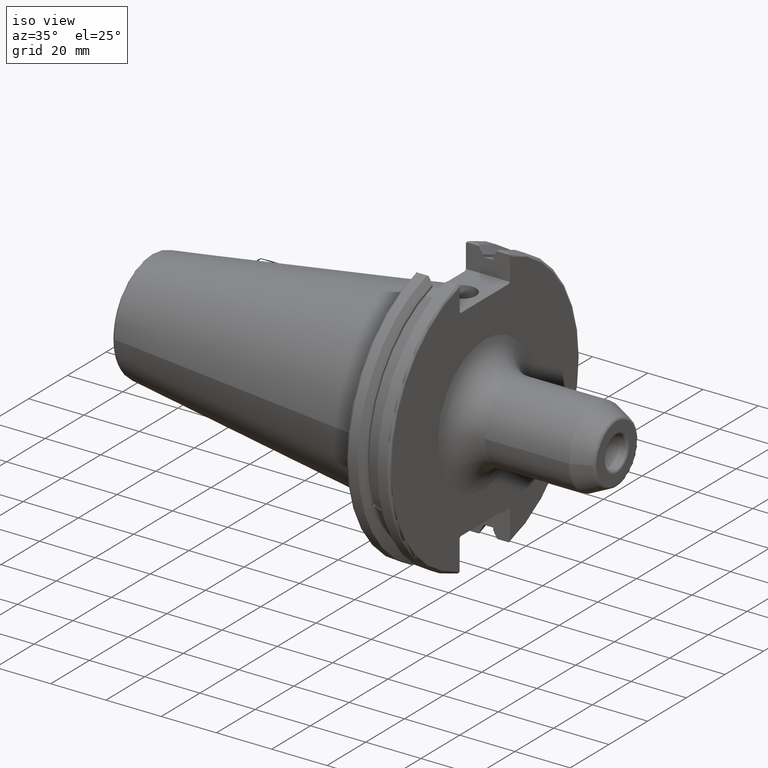
[diagram: clean part render]
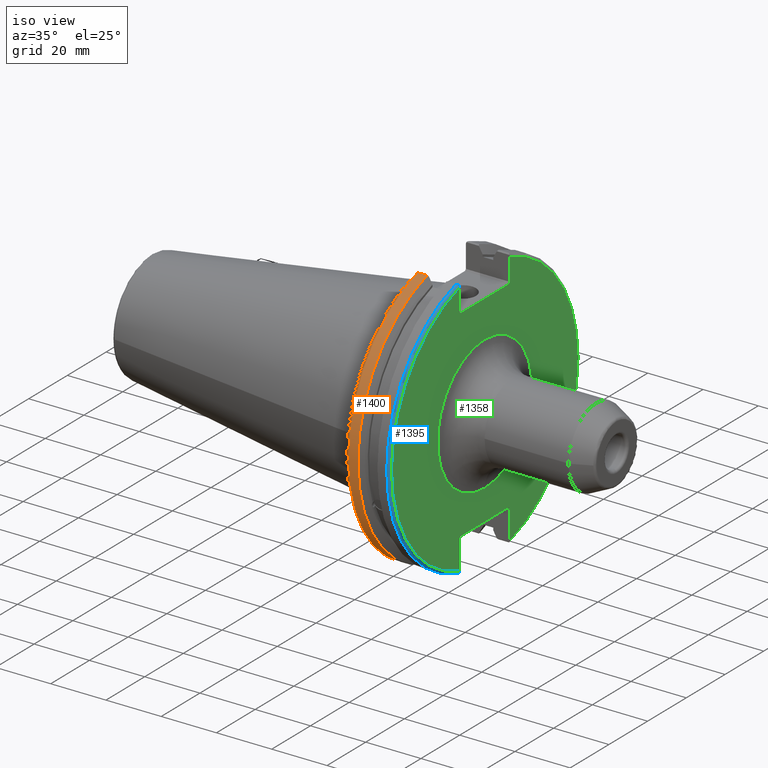
[diagram: same view with three faces highlighted in distinct colors, each labeled with its STEP entity id]
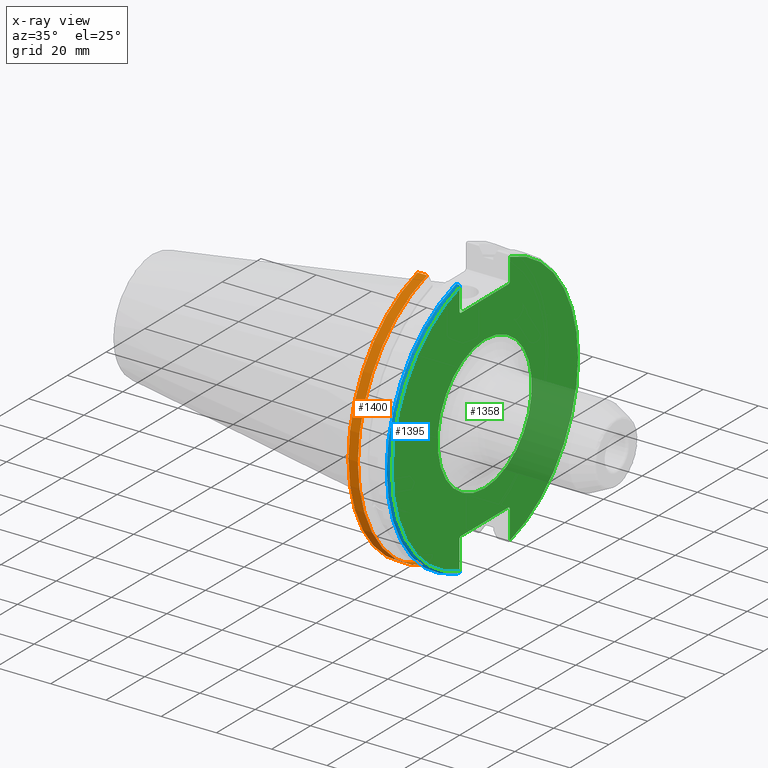
[diagram: x-ray of the same camera — body ghosted, the three highlighted faces saturated]
A machine part, iso view with three faces highlighted in distinct colors.
The next image is the same camera in x-ray (body ghosted, the three faces saturated) — at least one of them is partly hidden behind the body in this view.
Their STEP definitions:

[orange] entity #1400 — the highlighted cylindrical surface (partial cylindrical patch) has radius 49.2125 mm, axis along (1, 0, 0).
#104=CYLINDRICAL_SURFACE('',#1562,49.2125);
#158=FACE_OUTER_BOUND('',#248,.T.);
#248=EDGE_LOOP('',(#1183,#1184,#1185,#1186));
#341=CIRCLE('',#1560,49.2125);
#342=CIRCLE('',#1563,49.2125);
#426=LINE('',#2638,#514);
#427=LINE('',#2644,#515);
#514=VECTOR('',#1891,10.);
#515=VECTOR('',#1894,10.);
#685=VERTEX_POINT('',#2617);
#686=VERTEX_POINT('',#2626);
#687=VERTEX_POINT('',#2637);
#688=VERTEX_POINT('',#2643);
#867=EDGE_CURVE('',#685,#686,#341,.T.);
#869=EDGE_CURVE('',#686,#687,#426,.T.);
#871=EDGE_CURVE('',#688,#685,#427,.T.);
#872=EDGE_CURVE('',#687,#688,#342,.T.);
#1183=ORIENTED_EDGE('',*,*,#867,.F.);
#1184=ORIENTED_EDGE('',*,*,#871,.F.);
#1185=ORIENTED_EDGE('',*,*,#872,.F.);
#1186=ORIENTED_EDGE('',*,*,#869,.F.);
#1400=ADVANCED_FACE('',(#158),#104,.T.);
#1560=AXIS2_PLACEMENT_3D('',#2627,#1887,#1888);
#1562=AXIS2_PLACEMENT_3D('',#2642,#1892,#1893);
#1563=AXIS2_PLACEMENT_3D('',#2645,#1895,#1896);
#1887=DIRECTION('center_axis',(-1.,0.,0.));
#1888=DIRECTION('ref_axis',(0.,-1.,1.60812264967664E-16));
#1891=DIRECTION('',(1.,0.,0.));
#1892=DIRECTION('center_axis',(1.,0.,0.));
#1893=DIRECTION('ref_axis',(0.,-1.,1.22464679914735E-16));
#1894=DIRECTION('',(-1.,0.,0.));
#1895=DIRECTION('center_axis',(1.,0.,0.));
#1896=DIRECTION('ref_axis',(0.,0.,-1.));
#2617=CARTESIAN_POINT('',(4.175,-13.4317035994433,-47.3440544806494));
#2626=CARTESIAN_POINT('',(4.175,-13.4317035994433,47.3440544806494));
#2627=CARTESIAN_POINT('Origin',(4.175,0.,0.));
#2637=CARTESIAN_POINT('',(7.60799096595127,-13.4317035994433,47.3440544806494));
#2638=CARTESIAN_POINT('',(5.39149548297563,-13.4317035994433,47.3440544806494));
#2642=CARTESIAN_POINT('Origin',(5.39149548297563,0.,0.));
#2643=CARTESIAN_POINT('',(7.60799096595127,-13.4317035994433,-47.3440544806494));
#2644=CARTESIAN_POINT('',(5.39149548297563,-13.4317035994433,-47.3440544806494));
#2645=CARTESIAN_POINT('Origin',(7.60799096595127,0.,0.));

[blue] entity #1395 — the highlighted toroidal blend (fillet) surface has major radius 48.2125 mm and minor (blend) radius 1 mm.
#86=TOROIDAL_SURFACE('',#1555,48.2125,1.);
#153=FACE_OUTER_BOUND('',#243,.T.);
#243=EDGE_LOOP('',(#1143,#1144,#1145,#1146,#1147,#1148));
#294=CIRCLE('',#1471,48.2125);
#340=CIRCLE('',#1556,49.2125);
#556=B_SPLINE_CURVE_WITH_KNOTS('',3,(#2548,#2549,#2550,#2551,#2552,#2553),
 .UNSPECIFIED.,.F.,.F.,(4,2,4),(0.097707143645253,0.112358403262293,0.150882178076498),
 .UNSPECIFIED.);
#557=B_SPLINE_CURVE_WITH_KNOTS('',3,(#2555,#2556,#2557,#2558,#2559,#2560),
 .UNSPECIFIED.,.F.,.F.,(4,2,4),(0.452859694247731,0.491383469061936,0.506034728678978),
 .UNSPECIFIED.);
#558=B_SPLINE_CURVE_WITH_KNOTS('',3,(#2562,#2563,#2564,#2565,#2566,#2567,
#2568,#2569),.UNSPECIFIED.,.F.,.F.,(4,2,2,4),(-0.104075769062722,-0.0730268503455477,
-0.0343639873656263,0.),.UNSPECIFIED.);
#559=B_SPLINE_CURVE_WITH_KNOTS('',3,(#2572,#2573,#2574,#2575,#2576,#2577,
#2578,#2579),.UNSPECIFIED.,.F.,.F.,(4,2,2,4),(0.,0.0364336453281818,0.0778720357014993,
0.104197480645881),.UNSPECIFIED.);
#583=VERTEX_POINT('',#2140);
#584=VERTEX_POINT('',#2142);
#674=VERTEX_POINT('',#2547);
#675=VERTEX_POINT('',#2554);
#676=VERTEX_POINT('',#2561);
#677=VERTEX_POINT('',#2570);
#727=EDGE_CURVE('',#584,#583,#294,.T.);
#848=EDGE_CURVE('',#674,#584,#556,.T.);
#849=EDGE_CURVE('',#583,#675,#557,.T.);
#850=EDGE_CURVE('',#675,#676,#558,.T.);
#851=EDGE_CURVE('',#676,#677,#340,.T.);
#852=EDGE_CURVE('',#677,#674,#559,.T.);
#1143=ORIENTED_EDGE('',*,*,#848,.T.);
#1144=ORIENTED_EDGE('',*,*,#727,.T.);
#1145=ORIENTED_EDGE('',*,*,#849,.T.);
#1146=ORIENTED_EDGE('',*,*,#850,.T.);
#1147=ORIENTED_EDGE('',*,*,#851,.T.);
#1148=ORIENTED_EDGE('',*,*,#852,.T.);
#1395=ADVANCED_FACE('',(#153),#86,.T.);
#1471=AXIS2_PLACEMENT_3D('',#2143,#1652,#1653);
#1555=AXIS2_PLACEMENT_3D('',#2546,#1868,#1869);
#1556=AXIS2_PLACEMENT_3D('',#2571,#1870,#1871);
#1652=DIRECTION('center_axis',(-1.,0.,0.));
#1653=DIRECTION('ref_axis',(0.,-1.,1.60812264967664E-16));
#1868=DIRECTION('center_axis',(1.,0.,0.));
#1869=DIRECTION('ref_axis',(0.,0.,-1.));
#1870=DIRECTION('center_axis',(1.,0.,0.));
#1871=DIRECTION('ref_axis',(0.,-1.,1.60812264967664E-16));
#2140=CARTESIAN_POINT('',(19.05,-12.95,46.4407434937254));
#2142=CARTESIAN_POINT('',(19.05,-12.95,-46.4407434937254));
#2143=CARTESIAN_POINT('Origin',(19.05,0.,0.));
#2546=CARTESIAN_POINT('Origin',(18.05,0.,0.));
#2547=CARTESIAN_POINT('',(18.9055020570566,-12.95,-46.9780755322917));
#2548=CARTESIAN_POINT('Ctrl Pts',(18.9055020570566,-12.95,-46.9780755322917));
#2549=CARTESIAN_POINT('Ctrl Pts',(18.9322353702005,-12.95,-46.9322596399785));
#2550=CARTESIAN_POINT('Ctrl Pts',(18.9549831813775,-12.95,-46.8849952622217));
#2551=CARTESIAN_POINT('Ctrl Pts',(19.0209992543299,-12.95,-46.7204975987179));
#2552=CARTESIAN_POINT('Ctrl Pts',(19.05,-12.95,-46.5691560764394));
#2553=CARTESIAN_POINT('Ctrl Pts',(19.05,-12.95,-46.4407434937254));
#2554=CARTESIAN_POINT('',(18.9055020570566,-12.95,46.9780755322918));
#2555=CARTESIAN_POINT('Ctrl Pts',(19.05,-12.95,46.4407434937254));
#2556=CARTESIAN_POINT('Ctrl Pts',(19.05,-12.95,46.5691560764394));
#2557=CARTESIAN_POINT('Ctrl Pts',(19.0209992543299,-12.95,46.7204975987179));
#2558=CARTESIAN_POINT('Ctrl Pts',(18.9549831813775,-12.95,46.8849952622217));
#2559=CARTESIAN_POINT('Ctrl Pts',(18.9322353702005,-12.95,46.9322596399785));
#2560=CARTESIAN_POINT('Ctrl Pts',(18.9055020570566,-12.95,46.9780755322918));
#2561=CARTESIAN_POINT('',(18.05,-13.4317035994433,47.3440544806494));
#2562=CARTESIAN_POINT('Ctrl Pts',(18.9055020570566,-12.95,46.9780755322918));
#2563=CARTESIAN_POINT('Ctrl Pts',(18.8571496772125,-13.0300321736484,47.0388807469102));
#2564=CARTESIAN_POINT('Ctrl Pts',(18.792640282015,-13.1083611826073,47.0983919657547));
#2565=CARTESIAN_POINT('Ctrl Pts',(18.6399248789208,-13.2478194810695,47.2043467509586));
#2566=CARTESIAN_POINT('Ctrl Pts',(18.5186188350904,-13.3242014686233,47.2623787015413));
#2567=CARTESIAN_POINT('Ctrl Pts',(18.2983889675417,-13.4067722493645,47.3251126473446));
#2568=CARTESIAN_POINT('Ctrl Pts',(18.1645466245521,-13.4317035994433,47.3440544806494));
#2569=CARTESIAN_POINT('Ctrl Pts',(18.05,-13.4317035994433,47.3440544806494));
#2570=CARTESIAN_POINT('',(18.05,-13.4317035994433,-47.3440544806494));
#2571=CARTESIAN_POINT('Origin',(18.05,0.,0.));
#2572=CARTESIAN_POINT('Ctrl Pts',(18.05,-13.4317035994433,-47.3440544806494));
#2573=CARTESIAN_POINT('Ctrl Pts',(18.1714454844273,-13.4317035994433,-47.3440544806494));
#2574=CARTESIAN_POINT('Ctrl Pts',(18.3128758164404,-13.4037095171132,-47.3227857070233));
#2575=CARTESIAN_POINT('Ctrl Pts',(18.54495745946,-13.3111366376071,-47.2524525703658));
#2576=CARTESIAN_POINT('Ctrl Pts',(18.6710431007969,-13.2254637570201,-47.1873617743322));
#2577=CARTESIAN_POINT('Ctrl Pts',(18.811782280389,-13.0847856162862,-47.0804802022157));
#2578=CARTESIAN_POINT('Ctrl Pts',(18.8641312352177,-13.0184763978125,-47.0301011349397));
#2579=CARTESIAN_POINT('Ctrl Pts',(18.9055020570566,-12.95,-46.9780755322917));

[green] entity #1358 — the highlighted planar face has unit normal (1, 0, 0).
#33=PLANE('',#1469);
#69=FACE_BOUND('',#199,.T.);
#116=FACE_OUTER_BOUND('',#198,.T.);
#198=EDGE_LOOP('',(#941,#942,#943,#944,#945,#946,#947,#948,#949,#950,#951,
#952));
#199=EDGE_LOOP('',(#953));
#289=CIRCLE('',#1464,24.35);
#293=CIRCLE('',#1470,48.2125);
#294=CIRCLE('',#1471,48.2125);
#364=LINE('',#2133,#452);
#365=LINE('',#2135,#453);
#366=LINE('',#2137,#454);
#367=LINE('',#2139,#455);
#368=LINE('',#2141,#456);
#369=LINE('',#2145,#457);
#370=LINE('',#2147,#458);
#371=LINE('',#2149,#459);
#372=LINE('',#2151,#460);
#373=LINE('',#2152,#461);
#452=VECTOR('',#1647,10.);
#453=VECTOR('',#1648,10.);
#454=VECTOR('',#1649,10.);
#455=VECTOR('',#1650,10.);
#456=VECTOR('',#1651,10.);
#457=VECTOR('',#1654,10.);
#458=VECTOR('',#1655,10.);
#459=VECTOR('',#1656,10.);
#460=VECTOR('',#1657,10.);
#461=VECTOR('',#1658,10.);
#574=VERTEX_POINT('',#2118);
#577=VERTEX_POINT('',#2129);
#578=VERTEX_POINT('',#2130);
#579=VERTEX_POINT('',#2132);
#580=VERTEX_POINT('',#2134);
#581=VERTEX_POINT('',#2136);
#582=VERTEX_POINT('',#2138);
#583=VERTEX_POINT('',#2140);
#584=VERTEX_POINT('',#2142);
#585=VERTEX_POINT('',#2144);
#586=VERTEX_POINT('',#2146);
#587=VERTEX_POINT('',#2148);
#588=VERTEX_POINT('',#2150);
#716=EDGE_CURVE('',#574,#574,#289,.T.);
#721=EDGE_CURVE('',#577,#578,#293,.T.);
#722=EDGE_CURVE('',#577,#579,#364,.T.);
#723=EDGE_CURVE('',#580,#579,#365,.T.);
#724=EDGE_CURVE('',#580,#581,#366,.T.);
#725=EDGE_CURVE('',#582,#581,#367,.T.);
#726=EDGE_CURVE('',#582,#583,#368,.T.);
#727=EDGE_CURVE('',#584,#583,#294,.T.);
#728=EDGE_CURVE('',#584,#585,#369,.T.);
#729=EDGE_CURVE('',#586,#585,#370,.T.);
#730=EDGE_CURVE('',#586,#587,#371,.T.);
#731=EDGE_CURVE('',#588,#587,#372,.T.);
#732=EDGE_CURVE('',#588,#578,#373,.T.);
#941=ORIENTED_EDGE('',*,*,#721,.F.);
#942=ORIENTED_EDGE('',*,*,#722,.T.);
#943=ORIENTED_EDGE('',*,*,#723,.F.);
#944=ORIENTED_EDGE('',*,*,#724,.T.);
#945=ORIENTED_EDGE('',*,*,#725,.F.);
#946=ORIENTED_EDGE('',*,*,#726,.T.);
#947=ORIENTED_EDGE('',*,*,#727,.F.);
#948=ORIENTED_EDGE('',*,*,#728,.T.);
#949=ORIENTED_EDGE('',*,*,#729,.F.);
#950=ORIENTED_EDGE('',*,*,#730,.T.);
#951=ORIENTED_EDGE('',*,*,#731,.F.);
#952=ORIENTED_EDGE('',*,*,#732,.T.);
#953=ORIENTED_EDGE('',*,*,#716,.F.);
#1358=ADVANCED_FACE('',(#116,#69),#33,.T.);
#1464=AXIS2_PLACEMENT_3D('',#2120,#1632,#1633);
#1469=AXIS2_PLACEMENT_3D('',#2128,#1643,#1644);
#1470=AXIS2_PLACEMENT_3D('',#2131,#1645,#1646);
#1471=AXIS2_PLACEMENT_3D('',#2143,#1652,#1653);
#1632=DIRECTION('center_axis',(1.,0.,0.));
#1633=DIRECTION('ref_axis',(0.,-1.,-1.22464679914735E-16));
#1643=DIRECTION('center_axis',(1.,0.,0.));
#1644=DIRECTION('ref_axis',(0.,0.,-1.));
#1645=DIRECTION('center_axis',(-1.,0.,0.));
#1646=DIRECTION('ref_axis',(0.,1.,-6.12323399573677E-17));
#1647=DIRECTION('',(0.,0.,-1.));
#1648=DIRECTION('',(0.,0.707106781186549,0.707106781186546));
#1649=DIRECTION('',(0.,-1.,0.));
#1650=DIRECTION('',(0.,0.707106781186549,-0.707106781186546));
#1651=DIRECTION('',(0.,0.,1.));
#1652=DIRECTION('center_axis',(-1.,0.,0.));
#1653=DIRECTION('ref_axis',(0.,-1.,1.60812264967664E-16));
#1654=DIRECTION('',(0.,0.,1.));
#1655=DIRECTION('',(0.,-0.707106781186549,-0.707106781186546));
#1656=DIRECTION('',(0.,1.,0.));
#1657=DIRECTION('',(0.,-0.707106781186549,0.707106781186546));
#1658=DIRECTION('',(0.,0.,-1.));
#2118=CARTESIAN_POINT('',(19.05,-2.98201495592381E-15,-24.35));
#2120=CARTESIAN_POINT('Origin',(19.05,0.,0.));
#2128=CARTESIAN_POINT('Origin',(19.05,0.,0.));
#2129=CARTESIAN_POINT('',(19.05,12.95,46.4407434937254));
#2130=CARTESIAN_POINT('',(19.05,12.95,-46.4407434937254));
#2131=CARTESIAN_POINT('Origin',(19.05,0.,0.));
#2132=CARTESIAN_POINT('',(19.05,12.95,38.219));
#2133=CARTESIAN_POINT('',(19.05,12.95,18.8595));
#2134=CARTESIAN_POINT('',(19.05,12.45,37.719));
#2135=CARTESIAN_POINT('',(19.05,0.0327499999999836,25.30175));
#2136=CARTESIAN_POINT('',(19.05,-12.45,37.719));
#2137=CARTESIAN_POINT('',(19.05,0.,37.719));
#2138=CARTESIAN_POINT('',(19.05,-12.95,38.219));
#2139=CARTESIAN_POINT('',(19.05,-0.0327499999999817,25.30175));
#2140=CARTESIAN_POINT('',(19.05,-12.95,46.4407434937254));
#2141=CARTESIAN_POINT('',(19.05,-12.95,18.8595));
#2142=CARTESIAN_POINT('',(19.05,-12.95,-46.4407434937254));
#2143=CARTESIAN_POINT('Origin',(19.05,0.,0.));
#2144=CARTESIAN_POINT('',(19.05,-12.95,-35.806));
#2145=CARTESIAN_POINT('',(19.05,-12.95,-17.653));
#2146=CARTESIAN_POINT('',(19.05,-12.45,-35.306));
#2147=CARTESIAN_POINT('',(19.05,-0.635999999999989,-23.492));
#2148=CARTESIAN_POINT('',(19.05,12.45,-35.306));
#2149=CARTESIAN_POINT('',(19.05,-3.33066907387547E-15,-35.306));
#2150=CARTESIAN_POINT('',(19.05,12.95,-35.806));
#2151=CARTESIAN_POINT('',(19.05,0.635999999999982,-23.492));
#2152=CARTESIAN_POINT('',(19.05,12.95,-17.653));